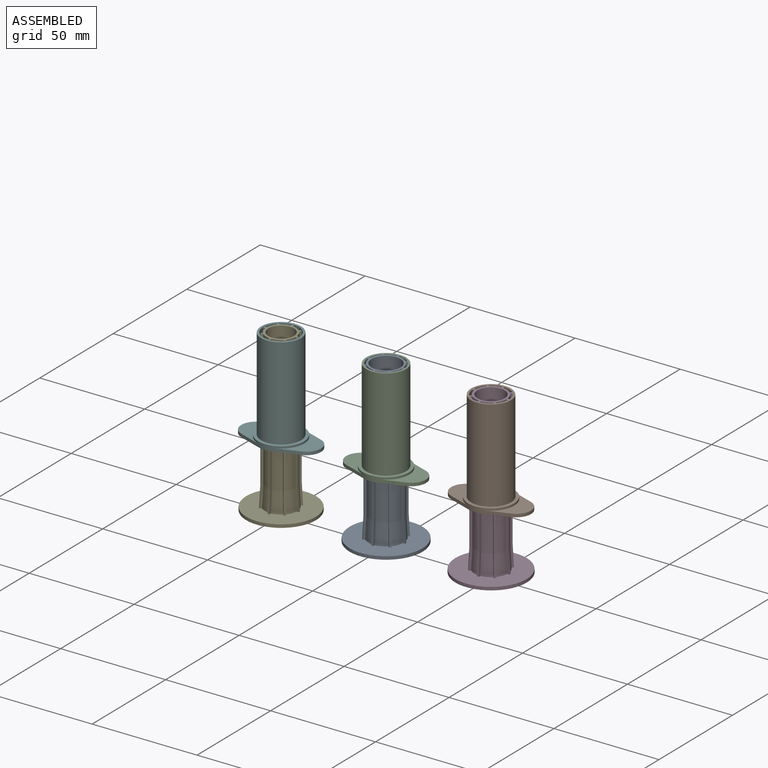
[diagram: assembled view]
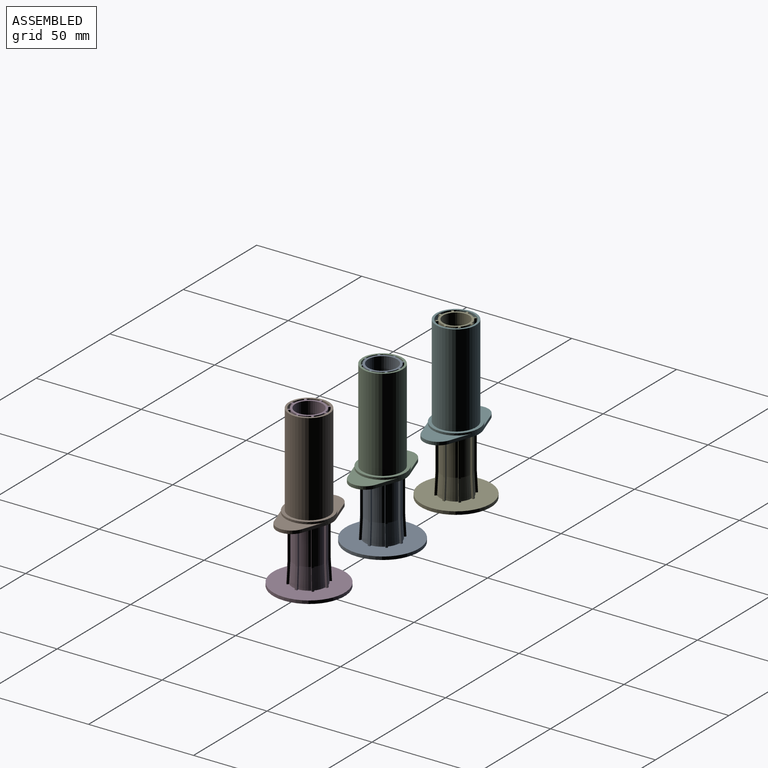
[diagram: assembled view, second angle]
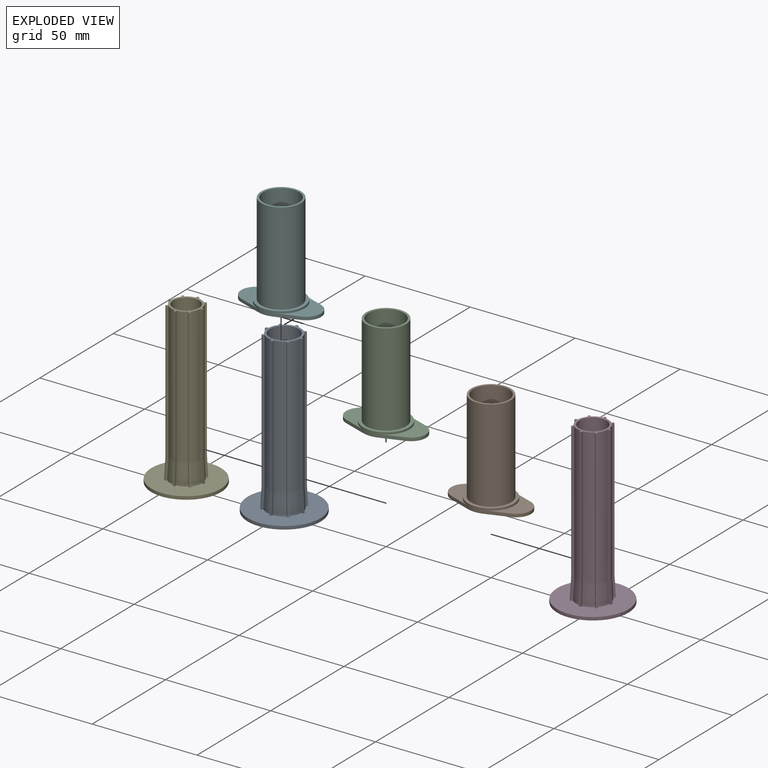
[diagram: exploded view]
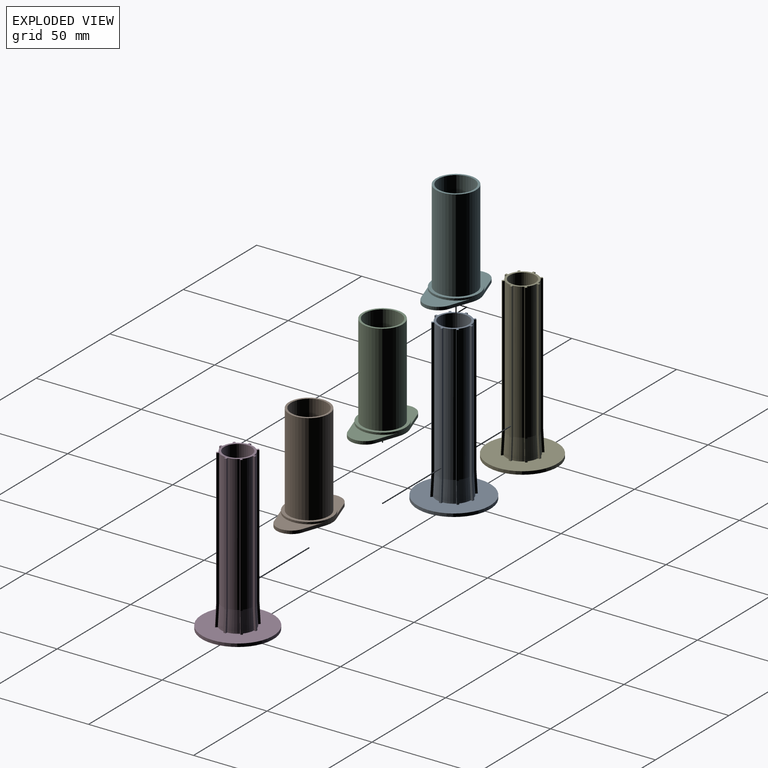
[diagram: exploded view, second angle]
ASSEMBLY  parts=6 mates=3
PART A: 94 faces, bbox 36.8x36.8x78.5 mm
  f0: plane 0.43x0.43mm, normal (0,0,1), area 0mm2, adj f41,f86,f87
  f1: plane 0.61x0.02mm, normal (0,0,1), area 0mm2, adj f41,f85,f86
  f2: plane 0.43x0.43mm, normal (0,0,1), area 0mm2, adj f41,f84,f85
  f3: plane 0.61x0.02mm, normal (0,0,1), area 0mm2, adj f41,f83,f84
  f4: plane 0.43x0.43mm, normal (0,0,1), area 0mm2, adj f41,f82,f83
  f5: plane 0.61x0.02mm, normal (0,0,1), area 0mm2, adj f41,f82,f89
  f6: plane 0.61x0.02mm, normal (0,0,1), area 0mm2, adj f41,f87,f88
  f7: plane 75.01x1.52mm, normal (-1,0,0), area 75.1mm2, adj f8,f38,f40,f43,f44,f68,f69,f93
  f8: cylinder r=7.88mm len=65mm, axis (0,0,-1), area 337mm2, adj f7,f9,f40,f68
  f9: plane 75.01x1.07mm, normal (0.71,0.71,0), area 75.1mm2, adj f8,f10,f40,f44,f45,f67,f68,f93
  f10: plane 65x0.71mm, normal (-0.71,0.71,0), area 65mm2, adj f9,f11,f40,f67
  f11: plane 75.01x1.07mm, normal (-0.71,-0.71,0), area 75.1mm2, adj f10,f12,f40,f45,f46,f66,f67,f93
  f12: cylinder r=7.88mm len=65mm, axis (0,0,-1), area 337mm2, adj f11,f13,f40,f66
  f13: plane 75.01x1.52mm, normal (0,1,0), area 75.1mm2, adj f12,f14,f40,f46,f47,f65,f66,f93
  f14: plane 65x1mm, normal (-1,0,0), area 65mm2, adj f13,f15,f40,f65
  f15: plane 75.01x1.52mm, normal (0,-1,0), area 75.1mm2, adj f14,f16,f40,f47,f48,f64,f65,f93
  f16: cylinder r=7.88mm len=65mm, axis (0,0,-1), area 337mm2, adj f15,f17,f40,f64
  f17: plane 75.01x1.07mm, normal (-0.71,0.71,0), area 75.1mm2, adj f16,f18,f40,f48,f49,f63,f64,f93
  f18: plane 65x0.71mm, normal (-0.71,-0.71,0), area 65mm2, adj f17,f19,f40,f63
  f19: plane 75.01x1.07mm, normal (0.71,-0.71,0), area 75.1mm2, adj f18,f20,f40,f49,f50,f62,f63,f93
  f20: cylinder r=7.88mm len=65mm, axis (0,0,-1), area 337mm2, adj f19,f21,f40,f62
  f21: plane 75.01x1.52mm, normal (-1,0,0), area 75.1mm2, adj f20,f22,f40,f50,f51,f61,f62,f93
  f22: plane 65x1mm, normal (0,-1,0), area 65mm2, adj f21,f23,f40,f61
  f23: plane 75.01x1.52mm, normal (1,0,0), area 75.1mm2, adj f22,f24,f40,f51,f52,f60,f61,f93
  f24: cylinder r=7.88mm len=65mm, axis (0,0,-1), area 337mm2, adj f23,f25,f40,f60
  f25: plane 75.01x1.07mm, normal (-0.71,-0.71,0), area 75.1mm2, adj f24,f26,f40,f52,f53,f59,f60,f93
  f26: plane 65x0.71mm, normal (0.71,-0.71,0), area 65mm2, adj f25,f27,f40,f59
  f27: plane 75.01x1.07mm, normal (0.71,0.71,0), area 75.1mm2, adj f26,f28,f40,f53,f54,f58,f59,f93
  f28: cylinder r=7.88mm len=65mm, axis (0,0,-1), area 337mm2, adj f27,f29,f40,f58
  f29: plane 75.01x1.52mm, normal (0,-1,0), area 75.1mm2, adj f28,f30,f40,f54,f55,f58,f73,f93
  f30: plane 65x1mm, normal (1,0,0), area 65mm2, adj f29,f31,f40,f73
  f31: plane 75.01x1.52mm, normal (0,1,0), area 75.1mm2, adj f30,f32,f40,f55,f56,f72,f73,f93
  f32: cylinder r=7.88mm len=65mm, axis (0,0,-1), area 337mm2, adj f31,f33,f40,f72
  f33: plane 75.01x1.07mm, normal (0.71,-0.71,0), area 75.1mm2, adj f32,f34,f40,f56,f57,f71,f72,f93
  f34: plane 65x0.71mm, normal (0.71,0.71,0), area 65mm2, adj f33,f35,f40,f71
  f35: plane 75.01x1.07mm, normal (-0.71,0.71,0), area 75.1mm2, adj f34,f36,f40,f42,f57,f70,f71,f93
  f36: cylinder r=7.88mm len=65mm, axis (0,0,-1), area 337mm2, adj f35,f37,f40,f70
  f37: plane 75.01x1.52mm, normal (1,0,0), area 75.1mm2, adj f36,f38,f40,f42,f43,f69,f70,f93
  f38: plane 65x1mm, normal (0,1,0), area 65mm2, adj f7,f37,f40,f69
  f39: plane 0.43x0.43mm, normal (0,0,1), area 0mm2, adj f41,f88,f89
  f40: plane 17.72x17.72mm, normal (0,0,-1), area 54.3mm2, adj f7,f8,f9,f10,f11,f12,f13,f14
  f41: cylinder r=6.88mm len=65mm, axis (0,0,-1), area 2807.8mm2, adj f0,f1,f2,f3,f4,f5,f6,f39
  f42: cylinder r=8.38mm len=5.06mm, axis (0,0,-1), area 0.1mm2, adj f35,f37,f70,f93
  f43: plane 1x0.01mm, normal (0,1,0), area 0mm2, adj f7,f37,f69,f93
  f44: cylinder r=8.38mm len=5.06mm, axis (0,0,-1), area 0.1mm2, adj f7,f9,f68,f93
  f45: plane 0.71x0.71mm, normal (-0.71,0.71,0), area 0mm2, adj f9,f11,f67,f93
  f46: cylinder r=8.38mm len=5.06mm, axis (0,0,-1), area 0.1mm2, adj f11,f13,f66,f93
  f47: plane 1x0.01mm, normal (-1,0,0), area 0mm2, adj f13,f15,f65,f93
  f48: cylinder r=8.38mm len=5.06mm, axis (0,0,-1), area 0.1mm2, adj f15,f17,f64,f93
  f49: plane 0.71x0.71mm, normal (-0.71,-0.71,0), area 0mm2, adj f17,f19,f63,f93
  f50: cylinder r=8.38mm len=5.06mm, axis (0,0,-1), area 0.1mm2, adj f19,f21,f62,f93
  f51: plane 1x0.01mm, normal (0,-1,0), area 0mm2, adj f21,f23,f61,f93
  f52: cylinder r=8.38mm len=5.06mm, axis (0,0,-1), area 0.1mm2, adj f23,f25,f60,f93
  f53: plane 0.71x0.71mm, normal (0.71,-0.71,0), area 0mm2, adj f25,f27,f59,f93
  f54: cylinder r=8.38mm len=5.06mm, axis (0,0,-1), area 0.1mm2, adj f27,f29,f58,f93
  f55: plane 1x0.01mm, normal (1,0,0), area 0mm2, adj f29,f31,f73,f93
  f56: cylinder r=8.38mm len=5.06mm, axis (0,0,-1), area 0.1mm2, adj f31,f33,f72,f93
  f57: plane 0.71x0.71mm, normal (0.71,0.71,0), area 0mm2, adj f33,f35,f71,f93
  f58: bspline ~10.11x6.11mm, area 53.9mm2, adj f27,f28,f29,f54
  f59: plane 10x1.07mm, normal (0.71,-0.71,-0.05), area 10mm2, adj f25,f26,f27,f53
  f60: bspline ~10.11x5.85mm, area 53.9mm2, adj f23,f24,f25,f52
  f61: plane 10x1mm, normal (0,-1,-0.05), area 10mm2, adj f21,f22,f23,f51
  f62: bspline ~10.11x6.11mm, area 53.9mm2, adj f19,f20,f21,f50
  f63: plane 10x1.07mm, normal (-0.71,-0.71,-0.05), area 10mm2, adj f17,f18,f19,f49
  f64: bspline ~10.11x5.85mm, area 53.9mm2, adj f15,f16,f17,f48
  f65: plane 10x1mm, normal (-1,0,-0.05), area 10mm2, adj f13,f14,f15,f47
  f66: bspline ~10.11x6.11mm, area 53.9mm2, adj f11,f12,f13,f46
  f67: plane 10x1.07mm, normal (-0.71,0.71,-0.05), area 10mm2, adj f9,f10,f11,f45
  f68: bspline ~10.11x5.85mm, area 53.9mm2, adj f7,f8,f9,f44
  f69: plane 10x1mm, normal (0,1,-0.05), area 10mm2, adj f7,f37,f38,f43
  f70: bspline ~10.11x6.11mm, area 53.9mm2, adj f35,f36,f37,f42
  f71: plane 10x1.07mm, normal (0.71,0.71,-0.05), area 10mm2, adj f33,f34,f35,f57
  f72: bspline ~10.11x5.85mm, area 53.9mm2, adj f31,f32,f33,f56
  f73: plane 10x1mm, normal (1,0,-0.05), area 10mm2, adj f29,f30,f31,f55
  f74: cylinder r=7.38mm len=0.67mm, axis (0,0,-1), area 0.1mm2, adj f87,f88,f90
  f75: cylinder r=7.38mm len=0.47mm, axis (0,0,-1), area 0.1mm2, adj f86,f87,f90
  f76: cylinder r=7.38mm len=0.67mm, axis (0,0,-1), area 0.1mm2, adj f85,f86,f90
  f77: cylinder r=7.38mm len=0.47mm, axis (0,0,-1), area 0.1mm2, adj f84,f85,f90
  f78: cylinder r=7.38mm len=0.67mm, axis (0,0,-1), area 0.1mm2, adj f83,f84,f90
  f79: cylinder r=7.38mm len=0.47mm, axis (0,0,-1), area 0.1mm2, adj f82,f83,f90
  f80: cylinder r=7.38mm len=0.67mm, axis (0,0,-1), area 0.1mm2, adj f82,f89,f90
  f81: cylinder r=7.38mm len=0.47mm, axis (0,0,-1), area 0.1mm2, adj f88,f89,f90
  f82: offset ~12.11x8.9mm, area 56mm2, adj f4,f5,f41,f79,f80,f83,f89,f90
  f83: offset ~12.11x8.9mm, area 56mm2, adj f3,f4,f41,f78,f79,f82,f84,f90
  f84: offset ~12.11x8.9mm, area 56mm2, adj f2,f3,f41,f77,f78,f83,f85,f90
  f85: offset ~12.11x8.9mm, area 56mm2, adj f1,f2,f41,f76,f77,f84,f86,f90
  f86: offset ~12.11x8.9mm, area 56mm2, adj f0,f1,f41,f75,f76,f85,f87,f90
  f87: offset ~12.11x8.9mm, area 56mm2, adj f0,f6,f41,f74,f75,f86,f88,f90
  f88: offset ~12.11x8.9mm, area 56mm2, adj f6,f39,f41,f74,f81,f87,f89,f90
  f89: offset ~12.11x8.9mm, area 56mm2, adj f5,f39,f41,f80,f81,f82,f88,f90
  f90: cylinder r=7.37mm len=14.75mm, axis (0,0,-1), area 69.5mm2, adj f74,f75,f76,f77,f78,f79,f80,f81
  f91: cylinder r=17.38mm len=34.75mm, axis (0,0,-1), area 163.8mm2, adj f92,f93
  f92: plane 34.75x34.75mm, normal (0,0,1), area 777.6mm2, adj f90,f91
  f93: plane 34.75x34.75mm, normal (0,0,-1), area 720mm2, adj f7,f9,f11,f13,f15,f17,f19,f21
PART B: 14 faces, bbox 38x22x46.5 mm
  f0: cylinder r=9.5mm len=44mm, axis (0,0,-1), area 2626.4mm2, adj f2,f4
  f1: cylinder r=8.5mm len=46.5mm, axis (0,0,-1), area 2483.4mm2, adj f2,f13
  f2: plane 19x19mm, normal (0,0,1), area 56.5mm2, adj f0,f1
  f3: cylinder r=11mm len=22mm, axis (0,0,-1), area 91.4mm2, adj f4,f5,f6,f7,f8,f10,f11,f13
  f4: plane 22x22mm, normal (0,0,1), area 96.6mm2, adj f0,f3
  f5: plane 20.76x15.36mm, normal (0,0,1), area 115.6mm2, adj f3,f8,f9,f10
  f6: plane 20.76x15.36mm, normal (0,0,1), area 115.6mm2, adj f3,f7,f11,f12
  f7: plane 10.64x3.73mm, normal (0.33,-0.94,0), area 16.9mm2, adj f3,f6,f12,f13
  f8: plane 10.64x3.73mm, normal (-0.33,-0.94,0), area 16.9mm2, adj f3,f5,f9,f13
  f9: cylinder r=7.05mm len=13.31mm, axis (0,0,1), area 26.1mm2, adj f5,f8,f10,f13
  f10: plane 10.64x3.73mm, normal (-0.33,0.94,0), area 16.9mm2, adj f3,f5,f9,f13
  f11: plane 10.64x3.73mm, normal (0.33,0.94,0), area 16.9mm2, adj f3,f6,f12,f13
  f12: cylinder r=7.05mm len=13.31mm, axis (0,0,1), area 26.1mm2, adj f6,f7,f11,f13
  f13: plane 38x22mm, normal (0,0,-1), area 384.3mm2, adj f1,f3,f7,f8,f9,f10,f11,f12
PART C: same geometry as B
PART D: 94 faces, bbox 36x36x78.5 mm
  f0: plane 0.43x0.43mm, normal (0,0,1), area 0mm2, adj f41,f86,f87
  f1: plane 0.61x0.02mm, normal (0,0,1), area 0mm2, adj f41,f85,f86
  f2: plane 0.43x0.43mm, normal (0,0,1), area 0mm2, adj f41,f84,f85
  f3: plane 0.61x0.02mm, normal (0,0,1), area 0mm2, adj f41,f83,f84
  f4: plane 0.43x0.43mm, normal (0,0,1), area 0mm2, adj f41,f82,f83
  f5: plane 0.61x0.02mm, normal (0,0,1), area 0mm2, adj f41,f82,f89
  f6: plane 0.61x0.02mm, normal (0,0,1), area 0mm2, adj f41,f87,f88
  f7: plane 75.01x1.52mm, normal (-1,0,0), area 75.1mm2, adj f8,f38,f40,f43,f44,f68,f69,f93
  f8: cylinder r=7.5mm len=65mm, axis (0,0,-1), area 317.8mm2, adj f7,f9,f40,f68
  f9: plane 75.01x1.07mm, normal (0.71,0.71,0), area 75.1mm2, adj f8,f10,f40,f44,f45,f67,f68,f93
  f10: plane 65x0.71mm, normal (-0.71,0.71,0), area 65mm2, adj f9,f11,f40,f67
  f11: plane 75.01x1.07mm, normal (-0.71,-0.71,0), area 75.1mm2, adj f10,f12,f40,f45,f46,f66,f67,f93
  f12: cylinder r=7.5mm len=65mm, axis (0,0,-1), area 317.8mm2, adj f11,f13,f40,f66
  f13: plane 75.01x1.52mm, normal (0,1,0), area 75.1mm2, adj f12,f14,f40,f46,f47,f65,f66,f93
  f14: plane 65x1mm, normal (-1,0,0), area 65mm2, adj f13,f15,f40,f65
  f15: plane 75.01x1.52mm, normal (0,-1,0), area 75.1mm2, adj f14,f16,f40,f47,f48,f64,f65,f93
  f16: cylinder r=7.5mm len=65mm, axis (0,0,-1), area 317.8mm2, adj f15,f17,f40,f64
  f17: plane 75.01x1.07mm, normal (-0.71,0.71,0), area 75.1mm2, adj f16,f18,f40,f48,f49,f63,f64,f93
  f18: plane 65x0.71mm, normal (-0.71,-0.71,0), area 65mm2, adj f17,f19,f40,f63
  f19: plane 75.01x1.07mm, normal (0.71,-0.71,0), area 75.1mm2, adj f18,f20,f40,f49,f50,f62,f63,f93
  f20: cylinder r=7.5mm len=65mm, axis (0,0,-1), area 317.8mm2, adj f19,f21,f40,f62
  f21: plane 75.01x1.52mm, normal (-1,0,0), area 75.1mm2, adj f20,f22,f40,f50,f51,f61,f62,f93
  f22: plane 65x1mm, normal (0,-1,0), area 65mm2, adj f21,f23,f40,f61
  f23: plane 75.01x1.52mm, normal (1,0,0), area 75.1mm2, adj f22,f24,f40,f51,f52,f60,f61,f93
  f24: cylinder r=7.5mm len=65mm, axis (0,0,-1), area 317.8mm2, adj f23,f25,f40,f60
  f25: plane 75.01x1.07mm, normal (-0.71,-0.71,0), area 75.1mm2, adj f24,f26,f40,f52,f53,f59,f60,f93
  f26: plane 65x0.71mm, normal (0.71,-0.71,0), area 65mm2, adj f25,f27,f40,f59
  f27: plane 75.01x1.07mm, normal (0.71,0.71,0), area 75.1mm2, adj f26,f28,f40,f53,f54,f58,f59,f93
  f28: cylinder r=7.5mm len=65mm, axis (0,0,-1), area 317.8mm2, adj f27,f29,f40,f58
  f29: plane 75.01x1.52mm, normal (0,-1,0), area 75.1mm2, adj f28,f30,f40,f54,f55,f58,f73,f93
  f30: plane 65x1mm, normal (1,0,0), area 65mm2, adj f29,f31,f40,f73
  f31: plane 75.01x1.52mm, normal (0,1,0), area 75.1mm2, adj f30,f32,f40,f55,f56,f72,f73,f93
  f32: cylinder r=7.5mm len=65mm, axis (0,0,-1), area 317.8mm2, adj f31,f33,f40,f72
  f33: plane 75.01x1.07mm, normal (0.71,-0.71,0), area 75.1mm2, adj f32,f34,f40,f56,f57,f71,f72,f93
  f34: plane 65x0.71mm, normal (0.71,0.71,0), area 65mm2, adj f33,f35,f40,f71
  f35: plane 75.01x1.07mm, normal (-0.71,0.71,0), area 75.1mm2, adj f34,f36,f40,f42,f57,f70,f71,f93
  f36: cylinder r=7.5mm len=65mm, axis (0,0,-1), area 317.8mm2, adj f35,f37,f40,f70
  f37: plane 75.01x1.52mm, normal (1,0,0), area 75.1mm2, adj f36,f38,f40,f42,f43,f69,f70,f93
  f38: plane 65x1mm, normal (0,1,0), area 65mm2, adj f7,f37,f40,f69
  f39: plane 0.43x0.43mm, normal (0,0,1), area 0mm2, adj f41,f88,f89
  f40: plane 16.97x16.97mm, normal (0,0,-1), area 51.9mm2, adj f7,f8,f9,f10,f11,f12,f13,f14
  f41: cylinder r=6.5mm len=65mm, axis (0,0,-1), area 2654.6mm2, adj f0,f1,f2,f3,f4,f5,f6,f39
  f42: cylinder r=8mm len=4.79mm, axis (0,0,-1), area 0.1mm2, adj f35,f37,f70,f93
  f43: plane 1x0.01mm, normal (0,1,0), area 0mm2, adj f7,f37,f69,f93
  f44: cylinder r=8mm len=4.79mm, axis (0,0,-1), area 0.1mm2, adj f7,f9,f68,f93
  f45: plane 0.71x0.71mm, normal (-0.71,0.71,0), area 0mm2, adj f9,f11,f67,f93
  f46: cylinder r=8mm len=4.79mm, axis (0,0,-1), area 0.1mm2, adj f11,f13,f66,f93
  f47: plane 1x0.01mm, normal (-1,0,0), area 0mm2, adj f13,f15,f65,f93
  f48: cylinder r=8mm len=4.79mm, axis (0,0,-1), area 0.1mm2, adj f15,f17,f64,f93
  f49: plane 0.71x0.71mm, normal (-0.71,-0.71,0), area 0mm2, adj f17,f19,f63,f93
  f50: cylinder r=8mm len=4.79mm, axis (0,0,-1), area 0.1mm2, adj f19,f21,f62,f93
  f51: plane 1x0.01mm, normal (0,-1,0), area 0mm2, adj f21,f23,f61,f93
  f52: cylinder r=8mm len=4.79mm, axis (0,0,-1), area 0.1mm2, adj f23,f25,f60,f93
  f53: plane 0.71x0.71mm, normal (0.71,-0.71,0), area 0mm2, adj f25,f27,f59,f93
  f54: cylinder r=8mm len=4.79mm, axis (0,0,-1), area 0.1mm2, adj f27,f29,f58,f93
  f55: plane 1x0.01mm, normal (1,0,0), area 0mm2, adj f29,f31,f73,f93
  f56: cylinder r=8mm len=4.79mm, axis (0,0,-1), area 0.1mm2, adj f31,f33,f72,f93
  f57: plane 0.71x0.71mm, normal (0.71,0.71,0), area 0mm2, adj f33,f35,f71,f93
  f58: bspline ~10.11x6.64mm, area 50.9mm2, adj f27,f28,f29,f54
  f59: plane 10x1.07mm, normal (0.71,-0.71,-0.05), area 10mm2, adj f25,f26,f27,f53
  f60: bspline ~10.11x5.58mm, area 50.9mm2, adj f23,f24,f25,f52
  f61: plane 10x1mm, normal (0,-1,-0.05), area 10mm2, adj f21,f22,f23,f51
  f62: bspline ~10.11x6.64mm, area 50.9mm2, adj f19,f20,f21,f50
  f63: plane 10x1.07mm, normal (-0.71,-0.71,-0.05), area 10mm2, adj f17,f18,f19,f49
  f64: bspline ~10.11x5.58mm, area 50.9mm2, adj f15,f16,f17,f48
  f65: plane 10x1mm, normal (-1,0,-0.05), area 10mm2, adj f13,f14,f15,f47
  f66: bspline ~10.11x6.64mm, area 50.9mm2, adj f11,f12,f13,f46
  f67: plane 10x1.07mm, normal (-0.71,0.71,-0.05), area 10mm2, adj f9,f10,f11,f45
  f68: bspline ~10.11x5.58mm, area 50.9mm2, adj f7,f8,f9,f44
  f69: plane 10x1mm, normal (0,1,-0.05), area 10mm2, adj f7,f37,f38,f43
  f70: bspline ~10.11x6.64mm, area 50.9mm2, adj f35,f36,f37,f42
  f71: plane 10x1.07mm, normal (0.71,0.71,-0.05), area 10mm2, adj f33,f34,f35,f57
  f72: bspline ~10.11x5.58mm, area 50.9mm2, adj f31,f32,f33,f56
  f73: plane 10x1mm, normal (1,0,-0.05), area 10mm2, adj f29,f30,f31,f55
  f74: cylinder r=7mm len=0.67mm, axis (0,0,-1), area 0.1mm2, adj f87,f88,f90
  f75: cylinder r=7mm len=0.47mm, axis (0,0,-1), area 0.1mm2, adj f86,f87,f90
  f76: cylinder r=7mm len=0.67mm, axis (0,0,-1), area 0.1mm2, adj f85,f86,f90
  f77: cylinder r=7mm len=0.47mm, axis (0,0,-1), area 0.1mm2, adj f84,f85,f90
  f78: cylinder r=7mm len=0.67mm, axis (0,0,-1), area 0.1mm2, adj f83,f84,f90
  f79: cylinder r=7mm len=0.47mm, axis (0,0,-1), area 0.1mm2, adj f82,f83,f90
  f80: cylinder r=7mm len=0.67mm, axis (0,0,-1), area 0.1mm2, adj f82,f89,f90
  f81: cylinder r=7mm len=0.47mm, axis (0,0,-1), area 0.1mm2, adj f88,f89,f90
  f82: offset ~12.11x8.64mm, area 53mm2, adj f4,f5,f41,f79,f80,f83,f89,f90
  f83: offset ~12.11x8.64mm, area 53mm2, adj f3,f4,f41,f78,f79,f82,f84,f90
  f84: offset ~12.11x8.64mm, area 53mm2, adj f2,f3,f41,f77,f78,f83,f85,f90
  f85: offset ~12.11x8.64mm, area 53mm2, adj f1,f2,f41,f76,f77,f84,f86,f90
  f86: offset ~12.11x8.64mm, area 53mm2, adj f0,f1,f41,f75,f76,f85,f87,f90
  f87: offset ~12.11x8.64mm, area 53mm2, adj f0,f6,f41,f74,f75,f86,f88,f90
  f88: offset ~12.11x8.64mm, area 53mm2, adj f6,f39,f41,f74,f81,f87,f89,f90
  f89: offset ~12.11x8.64mm, area 53mm2, adj f5,f39,f41,f80,f81,f82,f88,f90
  f90: cylinder r=7mm len=14mm, axis (0,0,-1), area 66mm2, adj f74,f75,f76,f77,f78,f79,f80,f81
  f91: cylinder r=17mm len=34mm, axis (0,0,-1), area 160.2mm2, adj f92,f93
  f92: plane 34x34mm, normal (0,0,1), area 754mm2, adj f90,f91
  f93: plane 34x34mm, normal (0,0,-1), area 698.8mm2, adj f7,f9,f11,f13,f15,f17,f19,f21
PART E: 94 faces, bbox 35.2x35.2x78.5 mm
  f0: plane 0.43x0.43mm, normal (0,0,1), area 0mm2, adj f41,f86,f87
  f1: plane 0.61x0.02mm, normal (0,0,1), area 0mm2, adj f41,f85,f86
  f2: plane 0.43x0.43mm, normal (0,0,1), area 0mm2, adj f41,f84,f85
  f3: plane 0.61x0.02mm, normal (0,0,1), area 0mm2, adj f41,f83,f84
  f4: plane 0.43x0.43mm, normal (0,0,1), area 0mm2, adj f41,f82,f83
  f5: plane 0.61x0.02mm, normal (0,0,1), area 0mm2, adj f41,f82,f89
  f6: plane 0.61x0.02mm, normal (0,0,1), area 0mm2, adj f41,f87,f88
  f7: plane 75.01x1.52mm, normal (-1,0,0), area 75.1mm2, adj f8,f38,f40,f43,f44,f68,f69,f93
  f8: cylinder r=7.12mm len=65mm, axis (0,0,-1), area 298.7mm2, adj f7,f9,f40,f68
  f9: plane 75.01x1.07mm, normal (0.71,0.71,0), area 75.1mm2, adj f8,f10,f40,f44,f45,f67,f68,f93
  f10: plane 65x0.71mm, normal (-0.71,0.71,0), area 65mm2, adj f9,f11,f40,f67
  f11: plane 75.01x1.07mm, normal (-0.71,-0.71,0), area 75.1mm2, adj f10,f12,f40,f45,f46,f66,f67,f93
  f12: cylinder r=7.12mm len=65mm, axis (0,0,-1), area 298.7mm2, adj f11,f13,f40,f66
  f13: plane 75.01x1.52mm, normal (0,1,0), area 75.1mm2, adj f12,f14,f40,f46,f47,f65,f66,f93
  f14: plane 65x1mm, normal (-1,0,0), area 65mm2, adj f13,f15,f40,f65
  f15: plane 75.01x1.52mm, normal (0,-1,0), area 75.1mm2, adj f14,f16,f40,f47,f48,f64,f65,f93
  f16: cylinder r=7.12mm len=65mm, axis (0,0,-1), area 298.7mm2, adj f15,f17,f40,f64
  f17: plane 75.01x1.07mm, normal (-0.71,0.71,0), area 75.1mm2, adj f16,f18,f40,f48,f49,f63,f64,f93
  f18: plane 65x0.71mm, normal (-0.71,-0.71,0), area 65mm2, adj f17,f19,f40,f63
  f19: plane 75.01x1.07mm, normal (0.71,-0.71,0), area 75.1mm2, adj f18,f20,f40,f49,f50,f62,f63,f93
  f20: cylinder r=7.12mm len=65mm, axis (0,0,-1), area 298.7mm2, adj f19,f21,f40,f62
  f21: plane 75.01x1.52mm, normal (-1,0,0), area 75.1mm2, adj f20,f22,f40,f50,f51,f61,f62,f93
  f22: plane 65x1mm, normal (0,-1,0), area 65mm2, adj f21,f23,f40,f61
  f23: plane 75.01x1.52mm, normal (1,0,0), area 75.1mm2, adj f22,f24,f40,f51,f52,f60,f61,f93
  f24: cylinder r=7.12mm len=65mm, axis (0,0,-1), area 298.7mm2, adj f23,f25,f40,f60
  f25: plane 75.01x1.07mm, normal (-0.71,-0.71,0), area 75.1mm2, adj f24,f26,f40,f52,f53,f59,f60,f93
  f26: plane 65x0.71mm, normal (0.71,-0.71,0), area 65mm2, adj f25,f27,f40,f59
  f27: plane 75.01x1.07mm, normal (0.71,0.71,0), area 75.1mm2, adj f26,f28,f40,f53,f54,f58,f59,f93
  f28: cylinder r=7.12mm len=65mm, axis (0,0,-1), area 298.7mm2, adj f27,f29,f40,f58
  f29: plane 75.01x1.52mm, normal (0,-1,0), area 75.1mm2, adj f28,f30,f40,f54,f55,f58,f73,f93
  f30: plane 65x1mm, normal (1,0,0), area 65mm2, adj f29,f31,f40,f73
  f31: plane 75.01x1.52mm, normal (0,1,0), area 75.1mm2, adj f30,f32,f40,f55,f56,f72,f73,f93
  f32: cylinder r=7.12mm len=65mm, axis (0,0,-1), area 298.7mm2, adj f31,f33,f40,f72
  f33: plane 75.01x1.07mm, normal (0.71,-0.71,0), area 75.1mm2, adj f32,f34,f40,f56,f57,f71,f72,f93
  f34: plane 65x0.71mm, normal (0.71,0.71,0), area 65mm2, adj f33,f35,f40,f71
  f35: plane 75.01x1.07mm, normal (-0.71,0.71,0), area 75.1mm2, adj f34,f36,f40,f42,f57,f70,f71,f93
  f36: cylinder r=7.12mm len=65mm, axis (0,0,-1), area 298.7mm2, adj f35,f37,f40,f70
  f37: plane 75.01x1.52mm, normal (1,0,0), area 75.1mm2, adj f36,f38,f40,f42,f43,f69,f70,f93
  f38: plane 65x1mm, normal (0,1,0), area 65mm2, adj f7,f37,f40,f69
  f39: plane 0.43x0.43mm, normal (0,0,1), area 0mm2, adj f41,f88,f89
  f40: plane 16.22x16.22mm, normal (0,0,-1), area 49.5mm2, adj f7,f8,f9,f10,f11,f12,f13,f14
  f41: cylinder r=6.12mm len=65mm, axis (0,0,-1), area 2501.5mm2, adj f0,f1,f2,f3,f4,f5,f6,f39
  f42: cylinder r=7.62mm len=4.53mm, axis (0,0,-1), area 0mm2, adj f35,f37,f70,f93
  f43: plane 1x0.01mm, normal (0,1,0), area 0mm2, adj f7,f37,f69,f93
  f44: cylinder r=7.62mm len=4.53mm, axis (0,0,-1), area 0mm2, adj f7,f9,f68,f93
  f45: plane 0.71x0.71mm, normal (-0.71,0.71,0), area 0mm2, adj f9,f11,f67,f93
  f46: cylinder r=7.62mm len=4.53mm, axis (0,0,-1), area 0mm2, adj f11,f13,f66,f93
  f47: plane 1x0.01mm, normal (-1,0,0), area 0mm2, adj f13,f15,f65,f93
  f48: cylinder r=7.62mm len=4.53mm, axis (0,0,-1), area 0mm2, adj f15,f17,f64,f93
  f49: plane 0.71x0.71mm, normal (-0.71,-0.71,0), area 0mm2, adj f17,f19,f63,f93
  f50: cylinder r=7.62mm len=4.53mm, axis (0,0,-1), area 0mm2, adj f19,f21,f62,f93
  f51: plane 1x0.01mm, normal (0,-1,0), area 0mm2, adj f21,f23,f61,f93
  f52: cylinder r=7.62mm len=4.53mm, axis (0,0,-1), area 0mm2, adj f23,f25,f60,f93
  f53: plane 0.71x0.71mm, normal (0.71,-0.71,0), area 0mm2, adj f25,f27,f59,f93
  f54: cylinder r=7.62mm len=4.53mm, axis (0,0,-1), area 0mm2, adj f27,f29,f58,f93
  f55: plane 1x0.01mm, normal (1,0,0), area 0mm2, adj f29,f31,f73,f93
  f56: cylinder r=7.62mm len=4.53mm, axis (0,0,-1), area 0mm2, adj f31,f33,f72,f93
  f57: plane 0.71x0.71mm, normal (0.71,0.71,0), area 0mm2, adj f33,f35,f71,f93
  f58: bspline ~10.11x5.58mm, area 48mm2, adj f27,f28,f29,f54
  f59: plane 10x1.07mm, normal (0.71,-0.71,-0.05), area 10mm2, adj f25,f26,f27,f53
  f60: bspline ~10.11x5.32mm, area 48mm2, adj f23,f24,f25,f52
  f61: plane 10x1mm, normal (0,-1,-0.05), area 10mm2, adj f21,f22,f23,f51
  f62: bspline ~10.11x5.58mm, area 48mm2, adj f19,f20,f21,f50
  f63: plane 10x1.07mm, normal (-0.71,-0.71,-0.05), area 10mm2, adj f17,f18,f19,f49
  f64: bspline ~10.11x5.32mm, area 48mm2, adj f15,f16,f17,f48
  f65: plane 10x1mm, normal (-1,0,-0.05), area 10mm2, adj f13,f14,f15,f47
  f66: bspline ~10.11x5.58mm, area 48mm2, adj f11,f12,f13,f46
  f67: plane 10x1.07mm, normal (-0.71,0.71,-0.05), area 10mm2, adj f9,f10,f11,f45
  f68: bspline ~10.11x5.32mm, area 48mm2, adj f7,f8,f9,f44
  f69: plane 10x1mm, normal (0,1,-0.05), area 10mm2, adj f7,f37,f38,f43
  f70: bspline ~10.11x5.58mm, area 48mm2, adj f35,f36,f37,f42
  f71: plane 10x1.07mm, normal (0.71,0.71,-0.05), area 10mm2, adj f33,f34,f35,f57
  f72: bspline ~10.11x5.32mm, area 48mm2, adj f31,f32,f33,f56
  f73: plane 10x1mm, normal (1,0,-0.05), area 10mm2, adj f29,f30,f31,f55
  f74: cylinder r=6.62mm len=0.67mm, axis (0,0,-1), area 0.1mm2, adj f87,f88,f90
  f75: cylinder r=6.62mm len=0.47mm, axis (0,0,-1), area 0.1mm2, adj f86,f87,f90
  f76: cylinder r=6.62mm len=0.67mm, axis (0,0,-1), area 0.1mm2, adj f85,f86,f90
  f77: cylinder r=6.62mm len=0.47mm, axis (0,0,-1), area 0.1mm2, adj f84,f85,f90
  f78: cylinder r=6.62mm len=0.67mm, axis (0,0,-1), area 0.1mm2, adj f83,f84,f90
  f79: cylinder r=6.62mm len=0.47mm, axis (0,0,-1), area 0.1mm2, adj f82,f83,f90
  f80: cylinder r=6.62mm len=0.67mm, axis (0,0,-1), area 0.1mm2, adj f82,f89,f90
  f81: cylinder r=6.62mm len=0.47mm, axis (0,0,-1), area 0.1mm2, adj f88,f89,f90
  f82: offset ~12.11x8.37mm, area 50mm2, adj f4,f5,f41,f79,f80,f83,f89,f90
  f83: offset ~12.11x8.37mm, area 50mm2, adj f3,f4,f41,f78,f79,f82,f84,f90
  f84: offset ~12.11x8.37mm, area 50mm2, adj f2,f3,f41,f77,f78,f83,f85,f90
  f85: offset ~12.11x8.37mm, area 50mm2, adj f1,f2,f41,f76,f77,f84,f86,f90
  f86: offset ~12.11x8.37mm, area 50mm2, adj f0,f1,f41,f75,f76,f85,f87,f90
  f87: offset ~12.11x8.37mm, area 50mm2, adj f0,f6,f41,f74,f75,f86,f88,f90
  f88: offset ~12.11x8.37mm, area 50mm2, adj f6,f39,f41,f74,f81,f87,f89,f90
  f89: offset ~12.11x8.37mm, area 50mm2, adj f5,f39,f41,f80,f81,f82,f88,f90
  f90: cylinder r=6.62mm len=13.25mm, axis (0,0,-1), area 62.4mm2, adj f74,f75,f76,f77,f78,f79,f80,f81
  f91: cylinder r=16.62mm len=33.25mm, axis (0,0,-1), area 156.7mm2, adj f92,f93
  f92: plane 33.25x33.25mm, normal (0,0,1), area 730.5mm2, adj f90,f91
  f93: plane 33.25x33.25mm, normal (0,0,-1), area 677.6mm2, adj f7,f9,f11,f13,f15,f17,f19,f21
PART F: same geometry as B
PLACE A rot(axis=(1,0,0),180deg) t=(0,0,45)mm
PLACE B t=(50,0,0)mm
PLACE C at identity
PLACE D rot(axis=(1,0,0),180deg) t=(50,0,45)mm
PLACE E rot(axis=(1,0,0),180deg) t=(-50,0,45)mm
PLACE F t=(-50,0,0)mm
MATE slider E.f8 <-> F.f3  axis (0,0,1) through (-50,0,45)mm
MATE slider A.f8 <-> C.f3  axis (0,0,1) through (0,0,45)mm
MATE slider D.f8 <-> B.f3  axis (0,0,1) through (50,0,45)mm
